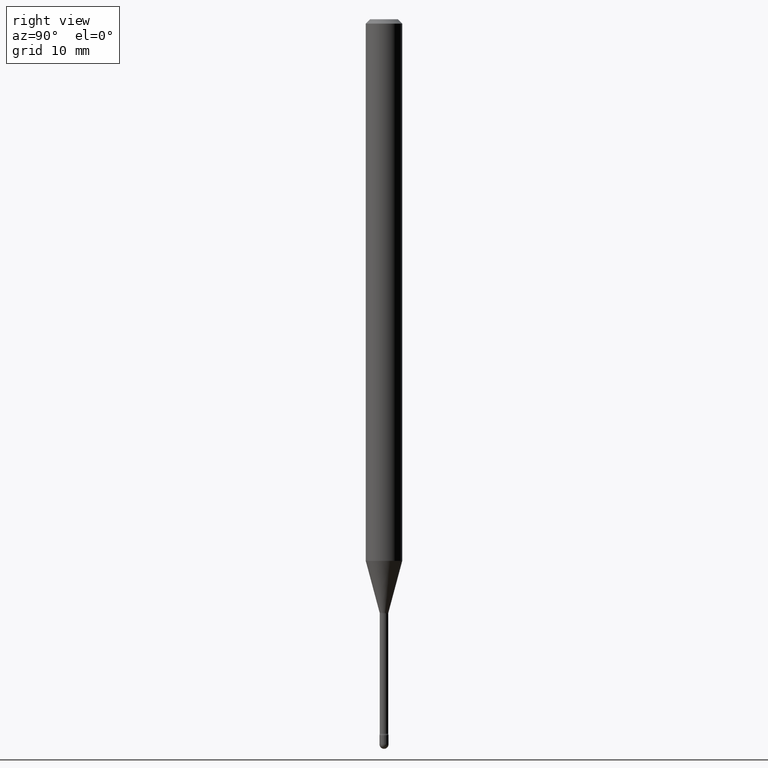
[diagram: clean part render]
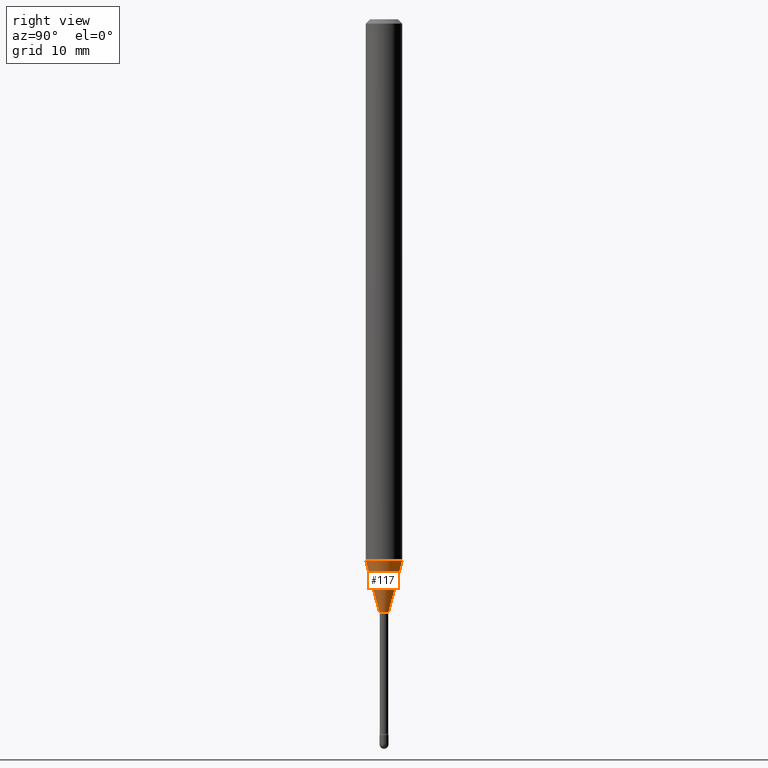
[diagram: same view with one face highlighted and labeled with its STEP entity id]
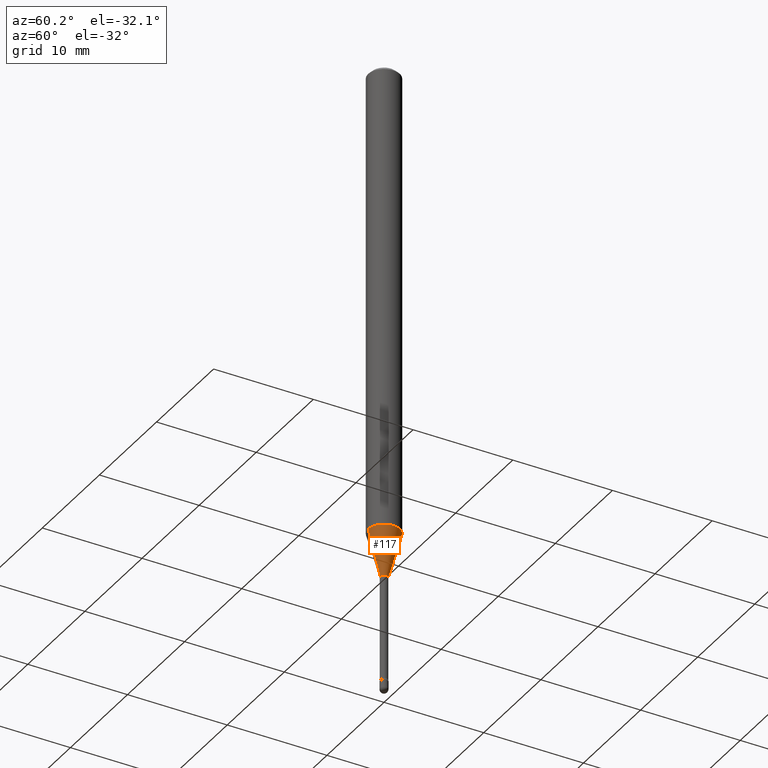
[diagram: same view with one face highlighted and labeled with its STEP entity id]
A machine part, right view. The second image highlights one B-rep face of the part: STEP entity #117.
A second angle (auxiliary view) of the same face is appended — the face is thin or edge-on in the first view.
In plain terms, the highlighted conical surface has half-angle 15 deg.
Its self-contained STEP definition (entity closure, byte-faithful):
#1 = ORIENTED_EDGE ( 'NONE', *, *, #361, .F. ) ;
#20 = VERTEX_POINT ( 'NONE', #154 ) ;
#45 = DIRECTION ( 'NONE',  ( -1.807323732225327773E-15, -0.2588190451025178529, 0.9659258262890690894 ) ) ;
#50 = CARTESIAN_POINT ( 'NONE',  ( -1.051711872097320102E-16, -0.01506111260567108076, -2.033092501787272965 ) ) ;
#82 = DIRECTION ( 'NONE',  ( -2.445473815707476510E-29, 3.491474164922030519E-15, 1.000000000000000000 ) ) ;
#91 = EDGE_LOOP ( 'NONE', ( #530, #190, #1, #366 ) ) ;
#98 = LINE ( 'NONE', #258, #536 ) ;
#115 = VERTEX_POINT ( 'NONE', #411 ) ;
#117 = ADVANCED_FACE ( 'NONE', ( #324 ), #129, .T. ) ;
#120 = AXIS2_PLACEMENT_3D ( 'NONE', #310, #270, #395 ) ;
#127 = DIRECTION ( 'NONE',  ( -6.982962677686266711E-15, -1.000000000000000000, 0.000000000000000000 ) ) ;
#129 = CONICAL_SURFACE ( 'NONE', #453, 0.01506111260566398227, 0.2617993877991499074 ) ;
#145 = EDGE_CURVE ( 'NONE', #339, #426, #98, .T. ) ;
#149 = CARTESIAN_POINT ( 'NONE',  ( -4.364351673553463592E-16, -0.06250000000000649480, -1.856048163777072491 ) ) ;
#154 = CARTESIAN_POINT ( 'NONE',  ( 4.440892098501077785E-16, 0.06249999999999351213, -1.856048163777072935 ) ) ;
#175 = CARTESIAN_POINT ( 'NONE',  ( 4.971874478031982191E-29, -7.098489944886961666E-15, -2.033092501787272965 ) ) ;
#190 = ORIENTED_EDGE ( 'NONE', *, *, #201, .T. ) ;
#199 = DIRECTION ( 'NONE',  ( -6.982962677686266711E-15, -1.000000000000000000, 0.000000000000000000 ) ) ;
#201 = EDGE_CURVE ( 'NONE', #115, #20, #480, .T. ) ;
#212 = CIRCLE ( 'NONE', #120, 0.06250000000000000000 ) ;
#238 = CARTESIAN_POINT ( 'NONE',  ( 4.971874478031982191E-29, -7.098489944886961666E-15, -2.033092501787272965 ) ) ;
#257 = CIRCLE ( 'NONE', #554, 0.01506111260566398227 ) ;
#258 = CARTESIAN_POINT ( 'NONE',  ( -1.051711872097320102E-16, -0.01506111260567108076, -2.033092501787272965 ) ) ;
#270 = DIRECTION ( 'NONE',  ( -2.445473815707476510E-29, 3.491474164922030519E-15, 1.000000000000000000 ) ) ;
#276 = VECTOR ( 'NONE', #374, 39.37007874015748854 ) ;
#310 = CARTESIAN_POINT ( 'NONE',  ( 4.538917185208773533E-29, -6.480344212678622894E-15, -1.856048163777072713 ) ) ;
#324 = FACE_OUTER_BOUND ( 'NONE', #91, .T. ) ;
#325 = EDGE_CURVE ( 'NONE', #339, #115, #257, .T. ) ;
#339 = VERTEX_POINT ( 'NONE', #50 ) ;
#361 = EDGE_CURVE ( 'NONE', #426, #20, #212, .T. ) ;
#366 = ORIENTED_EDGE ( 'NONE', *, *, #145, .F. ) ;
#374 = DIRECTION ( 'NONE',  ( 1.839019923739597554E-15, 0.2588190451025245697, 0.9659258262890670910 ) ) ;
#395 = DIRECTION ( 'NONE',  ( -6.982962677686265922E-15, -1.000000000000000000, 4.370956789862821150E-15 ) ) ;
#411 = CARTESIAN_POINT ( 'NONE',  ( 2.755524256971760080E-16, 0.01506111260565688378, -2.033092501787272965 ) ) ;
#426 = VERTEX_POINT ( 'NONE', #149 ) ;
#432 = CARTESIAN_POINT ( 'NONE',  ( 1.070156415442438800E-16, 0.01506111260565688378, -2.033092501787272965 ) ) ;
#453 = AXIS2_PLACEMENT_3D ( 'NONE', #238, #513, #199 ) ;
#480 = LINE ( 'NONE', #432, #276 ) ;
#513 = DIRECTION ( 'NONE',  ( -2.445473815707476510E-29, 3.491474164922030519E-15, 1.000000000000000000 ) ) ;
#530 = ORIENTED_EDGE ( 'NONE', *, *, #325, .T. ) ;
#536 = VECTOR ( 'NONE', #45, 39.37007874015748143 ) ;
#554 = AXIS2_PLACEMENT_3D ( 'NONE', #175, #82, #127 ) ;